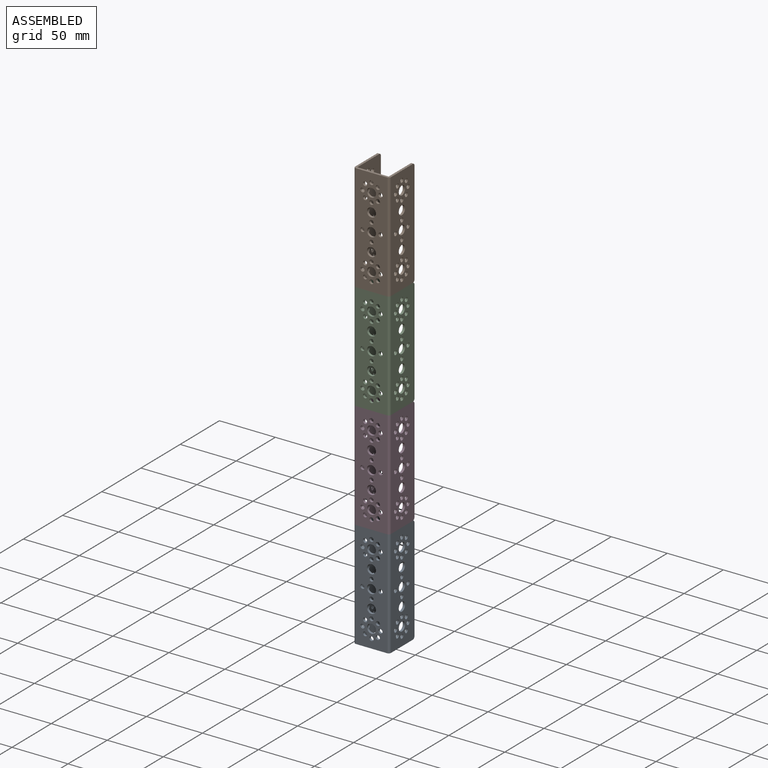
[diagram: assembled view]
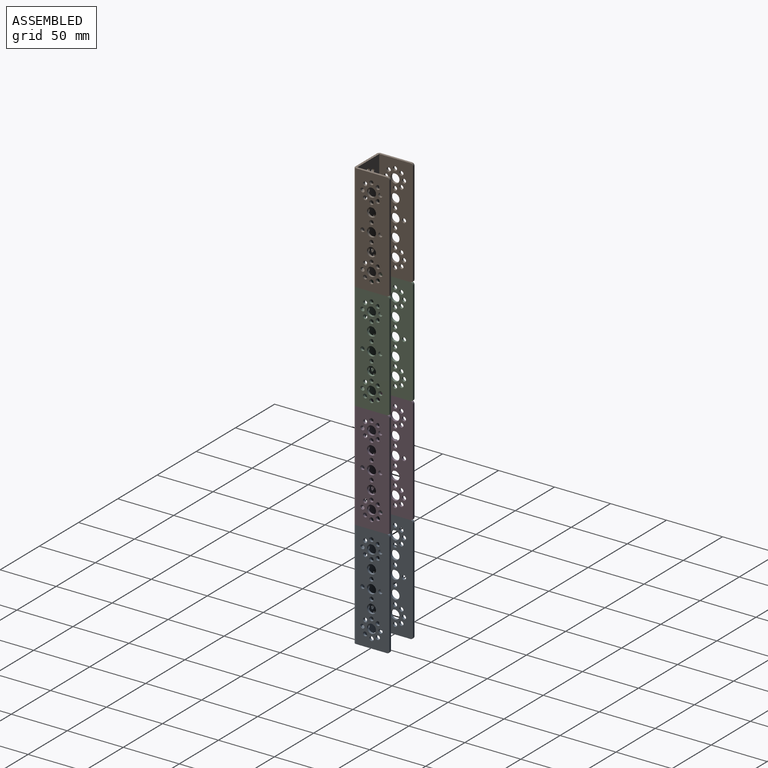
[diagram: assembled view, second angle]
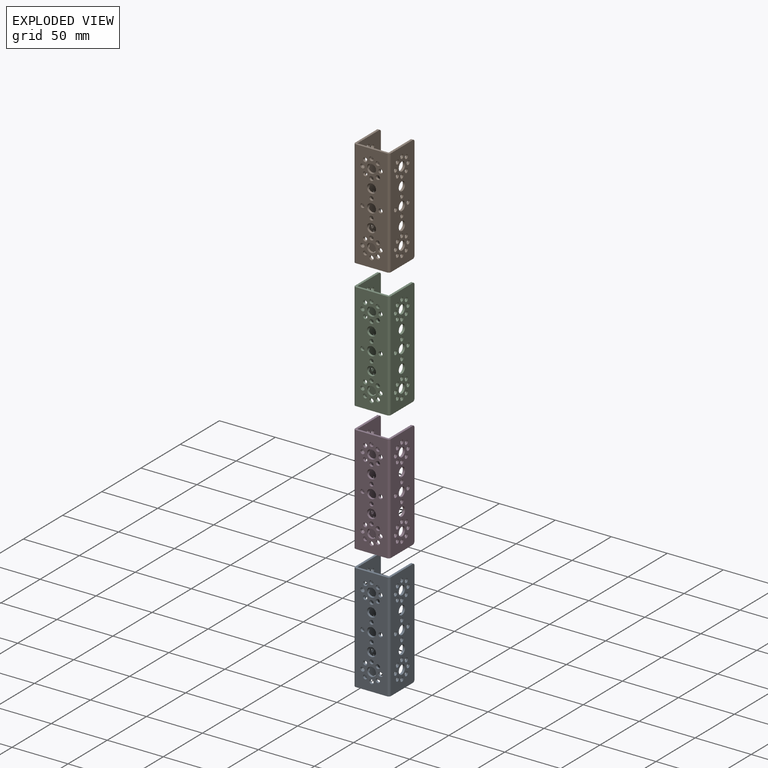
[diagram: exploded view]
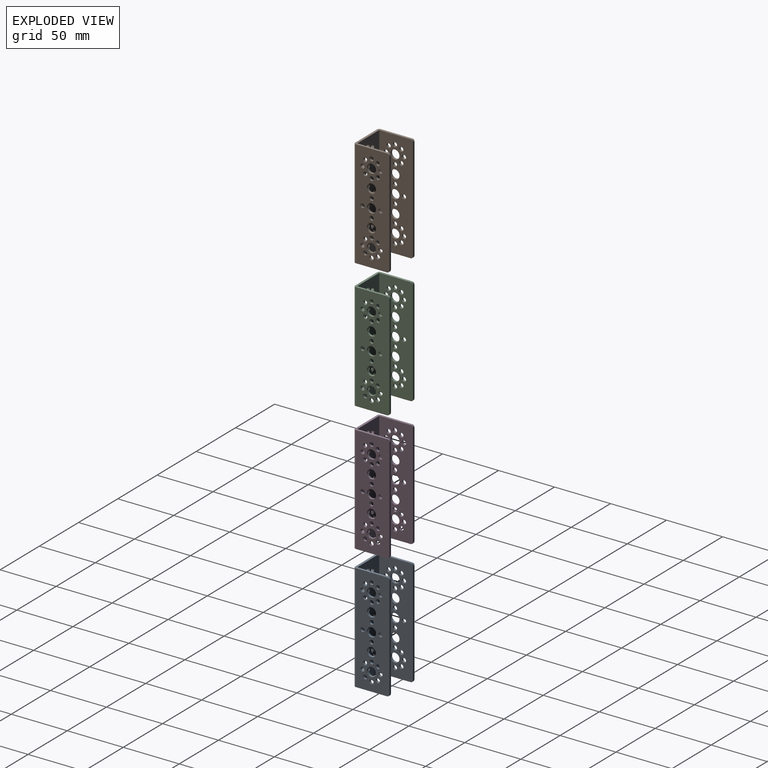
[diagram: exploded view, second angle]
ASSEMBLY  parts=4 mates=3
PART A: 91 faces, bbox 32x32x96 mm
  f0: cylinder r=2mm len=96mm, axis (0,0,-1), area 301.6mm2, adj f1,f9,f10,f11
  f1: plane 96x28mm, normal (0,-1,0), area 2221.6mm2, adj f0,f2,f10,f11,f62,f63,f64,f65
  f2: cylinder r=2mm len=96mm, axis (0,0,-1), area 301.6mm2, adj f1,f3,f10,f11
  f3: plane 96x30mm, normal (1,0,0), area 2411.9mm2, adj f2,f4,f10,f11,f13,f15,f17,f19
  f4: plane 92x2mm, normal (0,1,0), area 184mm2, adj f3,f5,f88,f89
  f5: plane 96x30mm, normal (-1,0,0), area 2411.9mm2, adj f4,f6,f10,f11,f13,f15,f17,f19
  f6: plane 96x28mm, normal (0,1,0), area 2221.6mm2, adj f5,f7,f10,f11,f62,f63,f64,f65
  f7: plane 96x30mm, normal (1,0,0), area 2411.9mm2, adj f6,f8,f10,f11,f12,f14,f16,f18
  f8: plane 92x2mm, normal (0,1,0), area 184mm2, adj f7,f9,f87,f90
  f9: plane 96x30mm, normal (-1,0,0), area 2411.9mm2, adj f0,f8,f10,f11,f12,f14,f16,f18
  f10: plane 32x30mm, normal (0,0,1), area 174.3mm2, adj f0,f1,f2,f3,f5,f6,f7,f9
  f11: plane 32x30mm, normal (0,0,-1), area 174.3mm2, adj f0,f1,f2,f3,f5,f6,f7,f9
  f12: cylinder r=4mm len=8mm, axis (1,0,0), area 50.3mm2, adj f7,f9
  f13: cylinder r=4mm len=8mm, axis (1,0,0), area 50.3mm2, adj f3,f5
  f14: cylinder r=1.85mm len=3.7mm, axis (1,0,0), area 23.2mm2, adj f7,f9
  f15: cylinder r=1.85mm len=3.7mm, axis (1,0,0), area 23.2mm2, adj f3,f5
  f16: cylinder r=1.85mm len=3.7mm, axis (1,0,0), area 23.2mm2, adj f7,f9
  f17: cylinder r=1.85mm len=3.7mm, axis (1,0,0), area 23.2mm2, adj f3,f5
  f18: cylinder r=1.85mm len=3.7mm, axis (1,0,0), area 23.2mm2, adj f7,f9
  f19: cylinder r=1.85mm len=3.7mm, axis (1,0,0), area 23.2mm2, adj f3,f5
  f20: cylinder r=1.85mm len=3.7mm, axis (1,0,0), area 23.2mm2, adj f7,f9
  f21: cylinder r=1.85mm len=3.7mm, axis (1,0,0), area 23.2mm2, adj f3,f5
  f22: cylinder r=4mm len=8mm, axis (1,0,0), area 50.3mm2, adj f7,f9
  f23: cylinder r=4mm len=8mm, axis (1,0,0), area 50.3mm2, adj f3,f5
  f24: cylinder r=4mm len=8mm, axis (1,0,0), area 50.3mm2, adj f7,f9
  f25: cylinder r=4mm len=8mm, axis (1,0,0), area 50.3mm2, adj f3,f5
  f26: cylinder r=4mm len=8mm, axis (1,0,0), area 50.3mm2, adj f7,f9
  f27: cylinder r=4mm len=8mm, axis (1,0,0), area 50.3mm2, adj f3,f5
  f28: cylinder r=1.85mm len=3.7mm, axis (1,0,0), area 23.2mm2, adj f7,f9
  f29: cylinder r=1.85mm len=3.7mm, axis (1,0,0), area 23.2mm2, adj f3,f5
  f30: cylinder r=1.85mm len=3.7mm, axis (1,0,0), area 23.2mm2, adj f7,f9
  f31: cylinder r=1.85mm len=3.7mm, axis (1,0,0), area 23.2mm2, adj f3,f5
  f32: cylinder r=1.85mm len=3.7mm, axis (1,0,0), area 23.2mm2, adj f7,f9
  f33: cylinder r=1.85mm len=3.7mm, axis (1,0,0), area 23.2mm2, adj f3,f5
  f34: cylinder r=1.85mm len=3.7mm, axis (1,0,0), area 23.2mm2, adj f7,f9
  f35: cylinder r=1.85mm len=3.7mm, axis (1,0,0), area 23.2mm2, adj f3,f5
  f36: cylinder r=1.85mm len=3.7mm, axis (1,0,0), area 23.2mm2, adj f7,f9
  f37: cylinder r=1.85mm len=3.7mm, axis (1,0,0), area 23.2mm2, adj f3,f5
  f38: cylinder r=1.85mm len=3.7mm, axis (1,0,0), area 23.2mm2, adj f7,f9
  f39: cylinder r=1.85mm len=3.7mm, axis (1,0,0), area 23.2mm2, adj f3,f5
  f40: cylinder r=1.85mm len=3.7mm, axis (1,0,0), area 23.2mm2, adj f7,f9
  f41: cylinder r=1.85mm len=3.7mm, axis (1,0,0), area 23.2mm2, adj f3,f5
  f42: cylinder r=1.85mm len=3.7mm, axis (1,0,0), area 23.2mm2, adj f7,f9
  f43: cylinder r=1.85mm len=3.7mm, axis (1,0,0), area 23.2mm2, adj f3,f5
  f44: cylinder r=4mm len=8mm, axis (1,0,0), area 50.3mm2, adj f7,f9
  f45: cylinder r=4mm len=8mm, axis (1,0,0), area 50.3mm2, adj f3,f5
  f46: cylinder r=1.85mm len=3.7mm, axis (1,0,0), area 23.2mm2, adj f7,f9
  f47: cylinder r=1.85mm len=3.7mm, axis (1,0,0), area 23.2mm2, adj f3,f5
  f48: cylinder r=1.85mm len=3.7mm, axis (1,0,0), area 23.2mm2, adj f7,f9
  f49: cylinder r=1.85mm len=3.7mm, axis (1,0,0), area 23.2mm2, adj f3,f5
  f50: cylinder r=1.85mm len=3.7mm, axis (1,0,0), area 23.2mm2, adj f7,f9
  f51: cylinder r=1.85mm len=3.7mm, axis (1,0,0), area 23.2mm2, adj f3,f5
  f52: cylinder r=1.85mm len=3.7mm, axis (1,0,0), area 23.2mm2, adj f7,f9
  f53: cylinder r=1.85mm len=3.7mm, axis (1,0,0), area 23.2mm2, adj f3,f5
  f54: cylinder r=1.85mm len=3.7mm, axis (1,0,0), area 23.2mm2, adj f7,f9
  f55: cylinder r=1.85mm len=3.7mm, axis (1,0,0), area 23.2mm2, adj f3,f5
  f56: cylinder r=1.85mm len=3.7mm, axis (1,0,0), area 23.2mm2, adj f7,f9
  f57: cylinder r=1.85mm len=3.7mm, axis (1,0,0), area 23.2mm2, adj f3,f5
  f58: cylinder r=1.85mm len=3.7mm, axis (1,0,0), area 23.2mm2, adj f7,f9
  f59: cylinder r=1.85mm len=3.7mm, axis (1,0,0), area 23.2mm2, adj f3,f5
  f60: cylinder r=1.85mm len=3.7mm, axis (1,0,0), area 23.2mm2, adj f7,f9
  f61: cylinder r=1.85mm len=3.7mm, axis (1,0,0), area 23.2mm2, adj f3,f5
  f62: cylinder r=4mm len=8mm, axis (0,1,0), area 50.3mm2, adj f1,f6
  f63: cylinder r=1.85mm len=3.7mm, axis (0,1,0), area 23.2mm2, adj f1,f6
  f64: cylinder r=1.85mm len=3.7mm, axis (0,1,0), area 23.2mm2, adj f1,f6
  f65: cylinder r=1.85mm len=3.7mm, axis (0,1,0), area 23.2mm2, adj f1,f6
  f66: cylinder r=1.85mm len=3.7mm, axis (0,1,0), area 23.2mm2, adj f1,f6
  f67: cylinder r=4mm len=8mm, axis (0,1,0), area 50.3mm2, adj f1,f6
  f68: cylinder r=4mm len=8mm, axis (0,1,0), area 50.3mm2, adj f1,f6
  f69: cylinder r=4mm len=8mm, axis (0,1,0), area 50.3mm2, adj f1,f6
  f70: cylinder r=1.85mm len=3.7mm, axis (0,1,0), area 23.2mm2, adj f1,f6
  f71: cylinder r=1.85mm len=3.7mm, axis (0,1,0), area 23.2mm2, adj f1,f6
  f72: cylinder r=1.85mm len=3.7mm, axis (0,1,0), area 23.2mm2, adj f1,f6
  f73: cylinder r=1.85mm len=3.7mm, axis (0,1,0), area 23.2mm2, adj f1,f6
  f74: cylinder r=1.85mm len=3.7mm, axis (0,1,0), area 23.2mm2, adj f1,f6
  f75: cylinder r=1.85mm len=3.7mm, axis (0,1,0), area 23.2mm2, adj f1,f6
  f76: cylinder r=1.85mm len=3.7mm, axis (0,1,0), area 23.2mm2, adj f1,f6
  f77: cylinder r=1.85mm len=3.7mm, axis (0,1,0), area 23.2mm2, adj f1,f6
  f78: cylinder r=4mm len=8mm, axis (0,1,0), area 50.3mm2, adj f1,f6
  f79: cylinder r=1.85mm len=3.7mm, axis (0,1,0), area 23.2mm2, adj f1,f6
  f80: cylinder r=1.85mm len=3.7mm, axis (0,1,0), area 23.2mm2, adj f1,f6
  f81: cylinder r=1.85mm len=3.7mm, axis (0,1,0), area 23.2mm2, adj f1,f6
  f82: cylinder r=1.85mm len=3.7mm, axis (0,1,0), area 23.2mm2, adj f1,f6
  f83: cylinder r=1.85mm len=3.7mm, axis (0,1,0), area 23.2mm2, adj f1,f6
  f84: cylinder r=1.85mm len=3.7mm, axis (0,1,0), area 23.2mm2, adj f1,f6
  f85: cylinder r=1.85mm len=3.7mm, axis (0,1,0), area 23.2mm2, adj f1,f6
  f86: cylinder r=1.85mm len=3.7mm, axis (0,1,0), area 23.2mm2, adj f1,f6
  f87: cylinder r=2mm len=2mm, axis (-1,0,0), area 6.3mm2, adj f7,f8,f9,f11
  f88: cylinder r=2mm len=2mm, axis (-1,0,0), area 6.3mm2, adj f3,f4,f5,f11
  f89: cylinder r=2mm len=2mm, axis (1,0,0), area 6.3mm2, adj f3,f4,f5,f10
  f90: cylinder r=2mm len=2mm, axis (1,0,0), area 6.3mm2, adj f7,f8,f9,f10
PART B: same geometry as A
PART C: same geometry as A
PART D: same geometry as A
PLACE A rot(axis=(0,1,0),180deg) t=(-18.36,-1.01,-309.01)mm
PLACE B t=(-18.36,-1.01,-21.01)mm fixed
PLACE C rot(axis=(0,1,0),180deg) t=(-18.36,-1.01,-117.01)mm
PLACE D rot(axis=(0,1,0),180deg) t=(-18.36,-1.01,-213.01)mm
MATE fastened C.f10 <-> D.f11  axis (0,0,-1) through (-18.36,-1.01,-165.01)mm
MATE fastened B.f11 <-> C.f11  axis (0,0,-1) through (-18.36,-1.01,-69.01)mm
MATE fastened D.f10 <-> A.f11  axis (0,0,-1) through (-18.36,-1.01,-261.01)mm
